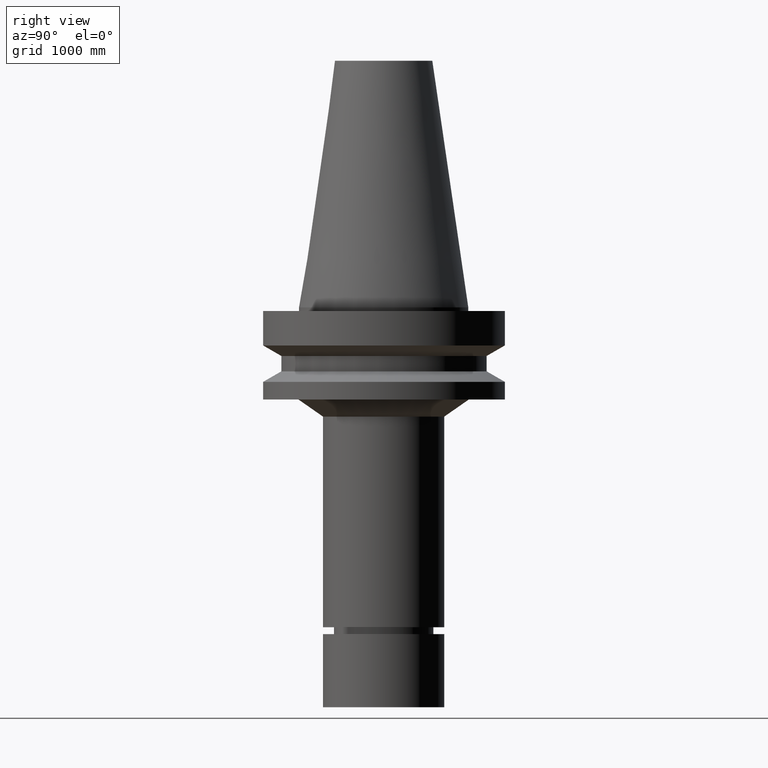
[diagram: clean part render]
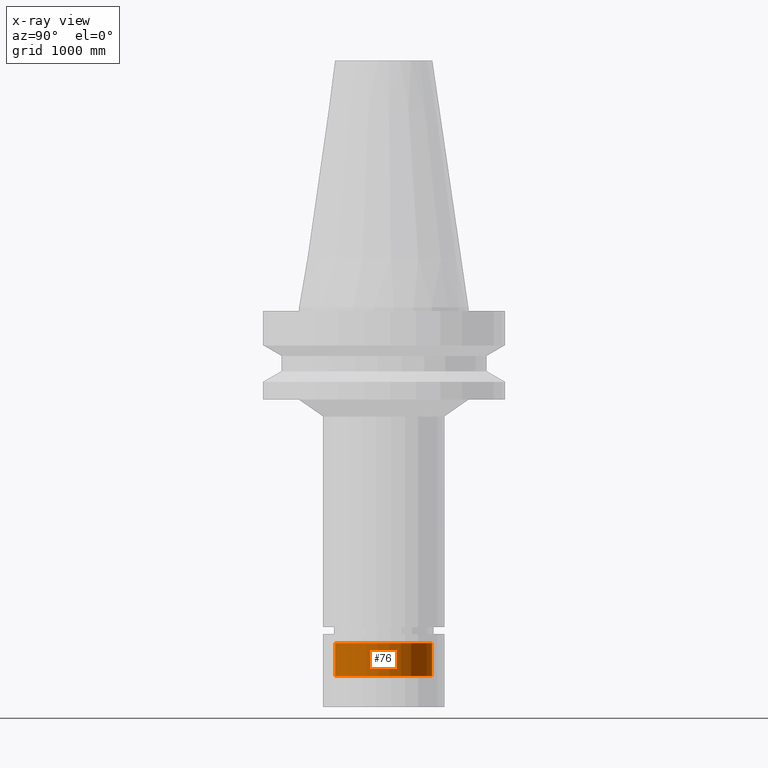
[diagram: x-ray — body ghosted, one internal face saturated and labeled with its STEP entity id]
A machine part, right view, then the same camera in x-ray: the body is ghosted and one INTERNAL B-rep face — a face not visible from any outside direction — is saturated and labeled: STEP entity #76.
In plain terms, the highlighted cylindrical surface (bore or boss wall) has radius 508 mm, axis along (-0, -0, 1).
Its self-contained STEP definition (entity closure, byte-faithful):
#76=ADVANCED_FACE('Unnamed[1]',(#202,#203),#204,.T.);
#163=EDGE_CURVE('Unnamed[1]',#336,#336,#337,.T.);
#170=EDGE_CURVE('Unnamed[1]',#347,#347,#348,.T.);
#202=FACE_BOUND('',#378,.T.);
#203=FACE_BOUND('',#379,.T.);
#204=CYLINDRICAL_SURFACE('',#380,20.0);
#336=VERTEX_POINT('',#544);
#337=CIRCLE('',#545,20.0000000000001);
#347=VERTEX_POINT('',#558);
#348=CIRCLE('',#559,20.0);
#378=EDGE_LOOP('',(#581));
#379=EDGE_LOOP('',(#582));
#380=AXIS2_PLACEMENT_3D('',#583,#584,#585);
#544=CARTESIAN_POINT('',(9.31311707717483E-015,20.0000000000001,-152.094744111673));
#545=AXIS2_PLACEMENT_3D('',#729,#730,#731);
#558=CARTESIAN_POINT('',(8.48068873243803E-015,20.0,-138.500157569393));
#559=AXIS2_PLACEMENT_3D('',#741,#742,#743);
#581=ORIENTED_EDGE('',*,*,#170,.F.);
#582=ORIENTED_EDGE('',*,*,#163,.T.);
#583=CARTESIAN_POINT('',(8.89690290480643E-015,1.97654771581335E-014,-145.297450840533));
#584=DIRECTION('',(-6.12323399573676E-017,-2.72265846766347E-017,1.0));
#585=DIRECTION('',(-6.49430021957034E-033,1.0,2.72265846766347E-017));
#729=CARTESIAN_POINT('',(9.31311707717483E-015,1.99505442389522E-014,-152.094744111673));
#730=DIRECTION('',(-6.12323399573677E-017,-2.72265846766347E-017,1.0));
#731=DIRECTION('',(-6.49430021956585E-033,1.0,2.72265846766347E-017));
#741=CARTESIAN_POINT('',(8.48068873243803E-015,1.95804100773149E-014,-138.500157569393));
#742=DIRECTION('',(-6.12323399573676E-017,-2.72265846766348E-017,1.0));
#743=DIRECTION('',(-6.49430021957035E-033,1.0,2.72265846766348E-017));